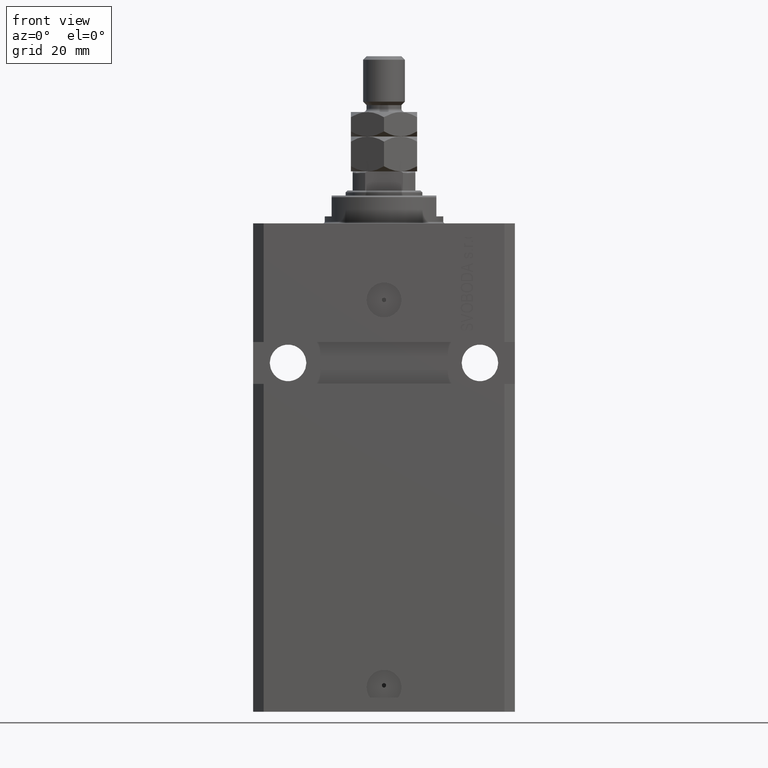
[diagram: clean part render]
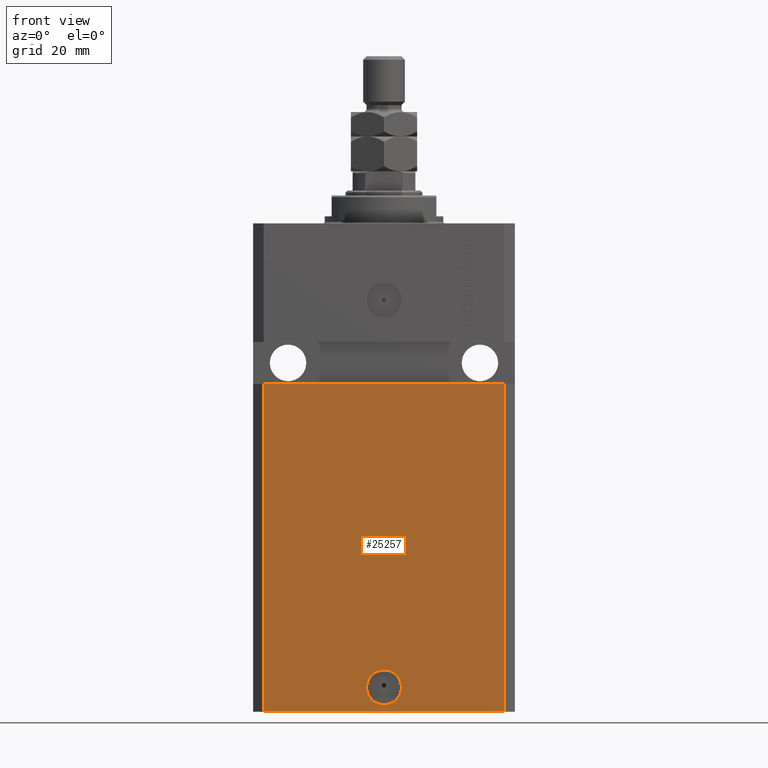
[diagram: same view with one face highlighted and labeled with its STEP entity id]
A machine part, front view. The second image highlights one B-rep face of the part: STEP entity #25257.
In plain terms, the highlighted planar face has unit normal (0, -1, 0).
Its self-contained STEP definition (entity closure, byte-faithful):
#2901 = ORIENTED_EDGE ( 'NONE', *, *, #21217, .F. ) ;
#3362 = FACE_OUTER_BOUND ( 'NONE', #9261, .T. ) ;
#3980 = VECTOR ( 'NONE', #35866, 1000.000000000000000 ) ;
#4053 = PLANE ( 'NONE',  #18419 ) ;
#4991 = CARTESIAN_POINT ( 'NONE',  ( 0.000000000000000000, -27.49999999999999645, -133.0000000000000000 ) ) ;
#6033 = CARTESIAN_POINT ( 'NONE',  ( -34.49999999999998579, -27.49999999999999645, -140.0000000000000000 ) ) ;
#6183 = EDGE_CURVE ( 'NONE', #30681, #9821, #38871, .T. ) ;
#6846 = CARTESIAN_POINT ( 'NONE',  ( -34.49999999999998579, -27.49999999999999645, -140.0000000000000000 ) ) ;
#8024 = ORIENTED_EDGE ( 'NONE', *, *, #6183, .T. ) ;
#8769 = CIRCLE ( 'NONE', #43415, 5.000000000000006217 ) ;
#9261 = EDGE_LOOP ( 'NONE', ( #2901, #9501, #39975, #8024 ) ) ;
#9501 = ORIENTED_EDGE ( 'NONE', *, *, #44353, .F. ) ;
#9821 = VERTEX_POINT ( 'NONE', #32052 ) ;
#10500 = VERTEX_POINT ( 'NONE', #16900 ) ;
#10888 = VERTEX_POINT ( 'NONE', #29215 ) ;
#11042 = EDGE_CURVE ( 'NONE', #10888, #10500, #18271, .T. ) ;
#13365 = LINE ( 'NONE', #20299, #25971 ) ;
#15625 = DIRECTION ( 'NONE',  ( 1.000000000000000000, 0.000000000000000000, 0.000000000000000000 ) ) ;
#15828 = DIRECTION ( 'NONE',  ( 1.176083712526788232E-16, -1.000000000000000000, 0.000000000000000000 ) ) ;
#16900 = CARTESIAN_POINT ( 'NONE',  ( -5.000000000000006217, -27.49999999999999645, -133.0000000000000000 ) ) ;
#17675 = DIRECTION ( 'NONE',  ( 0.000000000000000000, -0.000000000000000000, -1.000000000000000000 ) ) ;
#17714 = ORIENTED_EDGE ( 'NONE', *, *, #23769, .F. ) ;
#18139 = VECTOR ( 'NONE', #33727, 1000.000000000000000 ) ;
#18271 = CIRCLE ( 'NONE', #24156, 5.000000000000006217 ) ;
#18419 = AXIS2_PLACEMENT_3D ( 'NONE', #35424, #27805, #17675 ) ;
#20266 = CARTESIAN_POINT ( 'NONE',  ( -37.50000000000000000, -27.50000000000000000, -46.00000000000000000 ) ) ;
#20299 = CARTESIAN_POINT ( 'NONE',  ( -34.49999999999998579, -27.49999999999999645, -140.0000000000000000 ) ) ;
#20712 = DIRECTION ( 'NONE',  ( 1.000000000000000000, 9.251858538542972814E-17, 9.251858538542972814E-17 ) ) ;
#21217 = EDGE_CURVE ( 'NONE', #42597, #9821, #34089, .T. ) ;
#22771 = DIRECTION ( 'NONE',  ( 1.176083712526788232E-16, -1.000000000000000000, 0.000000000000000000 ) ) ;
#23769 = EDGE_CURVE ( 'NONE', #10500, #10888, #8769, .T. ) ;
#24030 = CARTESIAN_POINT ( 'NONE',  ( 34.49999999999999289, -27.49999999999999645, -140.0000000000000000 ) ) ;
#24031 = LINE ( 'NONE', #6033, #18139 ) ;
#24156 = AXIS2_PLACEMENT_3D ( 'NONE', #4991, #15828, #25974 ) ;
#24977 = ORIENTED_EDGE ( 'NONE', *, *, #11042, .F. ) ;
#25257 = ADVANCED_FACE ( 'NONE', ( #34967, #3362 ), #4053, .T. ) ;
#25971 = VECTOR ( 'NONE', #34355, 1000.000000000000000 ) ;
#25974 = DIRECTION ( 'NONE',  ( 1.000000000000000000, 0.000000000000000000, 0.000000000000000000 ) ) ;
#26971 = CARTESIAN_POINT ( 'NONE',  ( -34.49999999999998579, -27.50000000000000000, -46.00000000000000000 ) ) ;
#27805 = DIRECTION ( 'NONE',  ( 0.000000000000000000, -1.000000000000000000, 0.000000000000000000 ) ) ;
#29215 = CARTESIAN_POINT ( 'NONE',  ( 5.000000000000006217, -27.49999999999999645, -133.0000000000000000 ) ) ;
#30681 = VERTEX_POINT ( 'NONE', #24030 ) ;
#31491 = CARTESIAN_POINT ( 'NONE',  ( 34.49999999999999289, -27.49999999999999645, -140.0000000000000000 ) ) ;
#31955 = VERTEX_POINT ( 'NONE', #6846 ) ;
#32052 = CARTESIAN_POINT ( 'NONE',  ( 34.49999999999999289, -27.49999999999999289, -45.99999999999999289 ) ) ;
#32289 = VECTOR ( 'NONE', #20712, 1000.000000000000000 ) ;
#33152 = CARTESIAN_POINT ( 'NONE',  ( 0.000000000000000000, -27.49999999999999645, -133.0000000000000000 ) ) ;
#33727 = DIRECTION ( 'NONE',  ( 0.000000000000000000, 0.000000000000000000, 1.000000000000000000 ) ) ;
#34089 = LINE ( 'NONE', #20266, #32289 ) ;
#34355 = DIRECTION ( 'NONE',  ( 1.000000000000000000, 0.000000000000000000, 0.000000000000000000 ) ) ;
#34967 = FACE_BOUND ( 'NONE', #36490, .T. ) ;
#35424 = CARTESIAN_POINT ( 'NONE',  ( -34.49999999999998579, -27.49999999999999645, -140.0000000000000000 ) ) ;
#35866 = DIRECTION ( 'NONE',  ( 0.000000000000000000, 0.000000000000000000, 1.000000000000000000 ) ) ;
#36490 = EDGE_LOOP ( 'NONE', ( #24977, #17714 ) ) ;
#37391 = EDGE_CURVE ( 'NONE', #31955, #30681, #13365, .T. ) ;
#38871 = LINE ( 'NONE', #31491, #3980 ) ;
#39975 = ORIENTED_EDGE ( 'NONE', *, *, #37391, .T. ) ;
#42597 = VERTEX_POINT ( 'NONE', #26971 ) ;
#43415 = AXIS2_PLACEMENT_3D ( 'NONE', #33152, #22771, #15625 ) ;
#44353 = EDGE_CURVE ( 'NONE', #31955, #42597, #24031, .T. ) ;